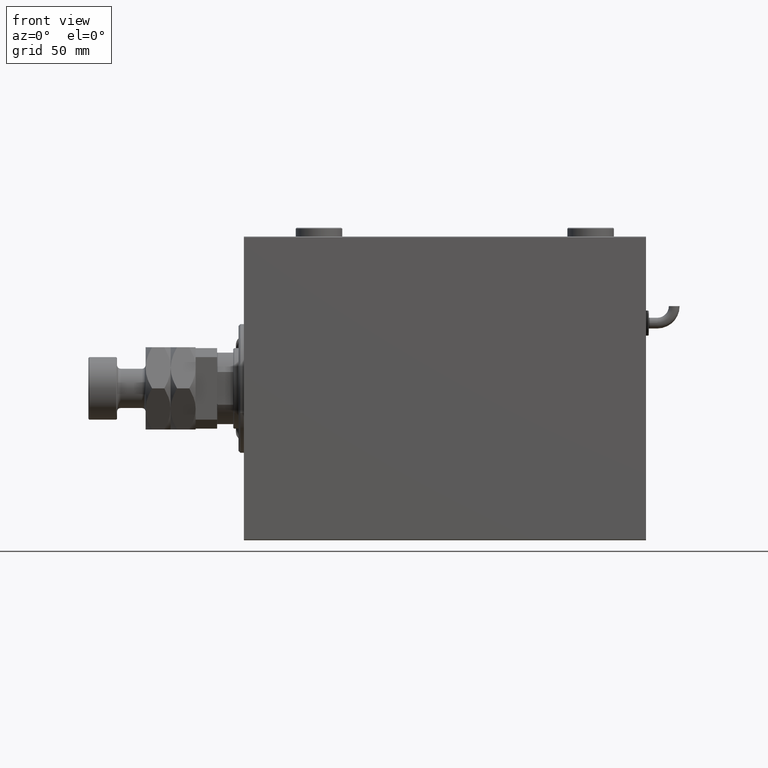
[diagram: clean part render]
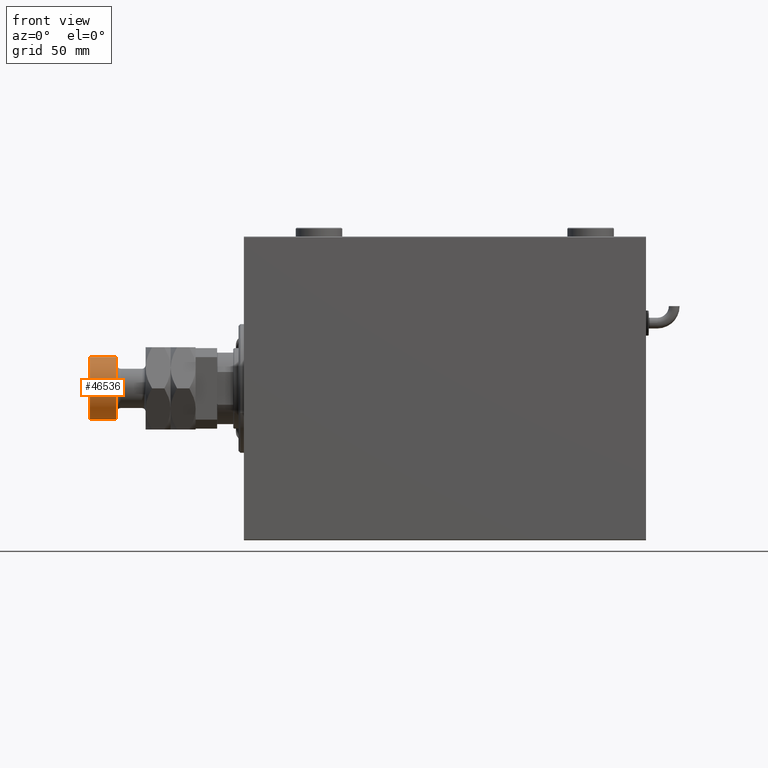
[diagram: same view with one face highlighted and labeled with its STEP entity id]
A machine part, front view. The second image highlights one B-rep face of the part: STEP entity #46536.
In plain terms, the highlighted cylindrical surface (edge-blend (fillet) strip) has radius 17.5 mm, axis along (1, -0, -0).
Its self-contained STEP definition (entity closure, byte-faithful):
#75 = FACE_OUTER_BOUND ( 'NONE', #59300, .T. ) ;
#333 = CARTESIAN_POINT ( 'NONE',  ( 17.50000000000000355, 2.143131898507868643E-15, 59.50000000000000000 ) ) ;
#2640 = VECTOR ( 'NONE', #53619, 1000.000000000000000 ) ;
#5156 = DIRECTION ( 'NONE',  ( -0.000000000000000000, -0.000000000000000000, -1.000000000000000000 ) ) ;
#6845 = VERTEX_POINT ( 'NONE', #24119 ) ;
#9266 = CARTESIAN_POINT ( 'NONE',  ( 17.50000000000000355, 2.143131898507868643E-15, 60.00000000000000000 ) ) ;
#12561 = VERTEX_POINT ( 'NONE', #333 ) ;
#13007 = AXIS2_PLACEMENT_3D ( 'NONE', #44378, #52230, #42681 ) ;
#17314 = CARTESIAN_POINT ( 'NONE',  ( 17.50000000000000355, 2.143131898507868643E-15, 44.50000000000000000 ) ) ;
#18457 = EDGE_CURVE ( 'NONE', #12561, #56210, #58536, .T. ) ;
#23109 = CIRCLE ( 'NONE', #60521, 17.50000000000000355 ) ;
#23825 = CARTESIAN_POINT ( 'NONE',  ( 0.000000000000000000, 0.000000000000000000, 59.50000000000000000 ) ) ;
#24119 = CARTESIAN_POINT ( 'NONE',  ( -17.50000000000000355, 0.000000000000000000, 59.50000000000000000 ) ) ;
#25590 = LINE ( 'NONE', #34834, #2640 ) ;
#31893 = EDGE_CURVE ( 'NONE', #12561, #6845, #23109, .T. ) ;
#33682 = DIRECTION ( 'NONE',  ( 0.000000000000000000, 0.000000000000000000, -1.000000000000000000 ) ) ;
#34811 = ORIENTED_EDGE ( 'NONE', *, *, #31893, .T. ) ;
#34834 = CARTESIAN_POINT ( 'NONE',  ( -17.50000000000000355, 0.000000000000000000, 60.00000000000000000 ) ) ;
#39471 = CYLINDRICAL_SURFACE ( 'NONE', #39894, 17.50000000000000355 ) ;
#39894 = AXIS2_PLACEMENT_3D ( 'NONE', #58256, #5156, #53804 ) ;
#42681 = DIRECTION ( 'NONE',  ( 1.000000000000000000, 0.000000000000000000, 0.000000000000000000 ) ) ;
#43246 = ORIENTED_EDGE ( 'NONE', *, *, #53840, .T. ) ;
#44378 = CARTESIAN_POINT ( 'NONE',  ( 0.000000000000000000, 0.000000000000000000, 44.50000000000000000 ) ) ;
#44537 = DIRECTION ( 'NONE',  ( -0.000000000000000000, -0.000000000000000000, -1.000000000000000000 ) ) ;
#46536 = ADVANCED_FACE ( 'NONE', ( #75 ), #39471, .T. ) ;
#46672 = ORIENTED_EDGE ( 'NONE', *, *, #18457, .F. ) ;
#48003 = DIRECTION ( 'NONE',  ( 1.000000000000000000, 0.000000000000000000, 0.000000000000000000 ) ) ;
#50135 = VERTEX_POINT ( 'NONE', #61218 ) ;
#52230 = DIRECTION ( 'NONE',  ( -0.000000000000000000, -0.000000000000000000, 1.000000000000000000 ) ) ;
#53619 = DIRECTION ( 'NONE',  ( -0.000000000000000000, -0.000000000000000000, -1.000000000000000000 ) ) ;
#53621 = CIRCLE ( 'NONE', #13007, 17.50000000000000355 ) ;
#53804 = DIRECTION ( 'NONE',  ( -1.000000000000000000, 0.000000000000000000, 0.000000000000000000 ) ) ;
#53840 = EDGE_CURVE ( 'NONE', #6845, #50135, #25590, .T. ) ;
#55144 = VECTOR ( 'NONE', #44537, 1000.000000000000000 ) ;
#56210 = VERTEX_POINT ( 'NONE', #17314 ) ;
#56995 = ORIENTED_EDGE ( 'NONE', *, *, #61697, .T. ) ;
#58256 = CARTESIAN_POINT ( 'NONE',  ( 0.000000000000000000, 0.000000000000000000, 60.00000000000000000 ) ) ;
#58536 = LINE ( 'NONE', #9266, #55144 ) ;
#59300 = EDGE_LOOP ( 'NONE', ( #46672, #34811, #43246, #56995 ) ) ;
#60521 = AXIS2_PLACEMENT_3D ( 'NONE', #23825, #33682, #48003 ) ;
#61218 = CARTESIAN_POINT ( 'NONE',  ( -17.50000000000000355, 0.000000000000000000, 44.50000000000000000 ) ) ;
#61697 = EDGE_CURVE ( 'NONE', #50135, #56210, #53621, .T. ) ;